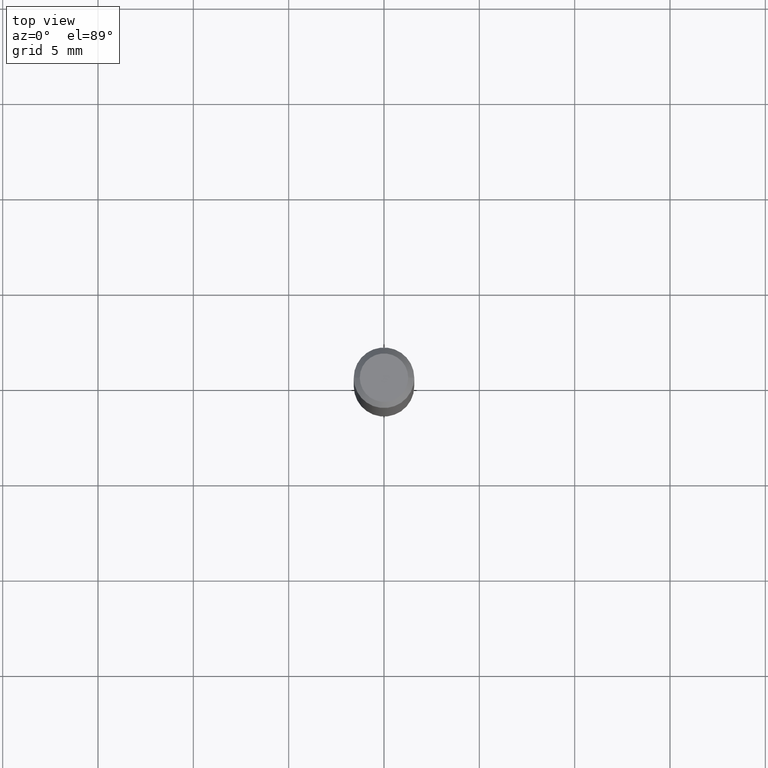
[diagram: clean part render]
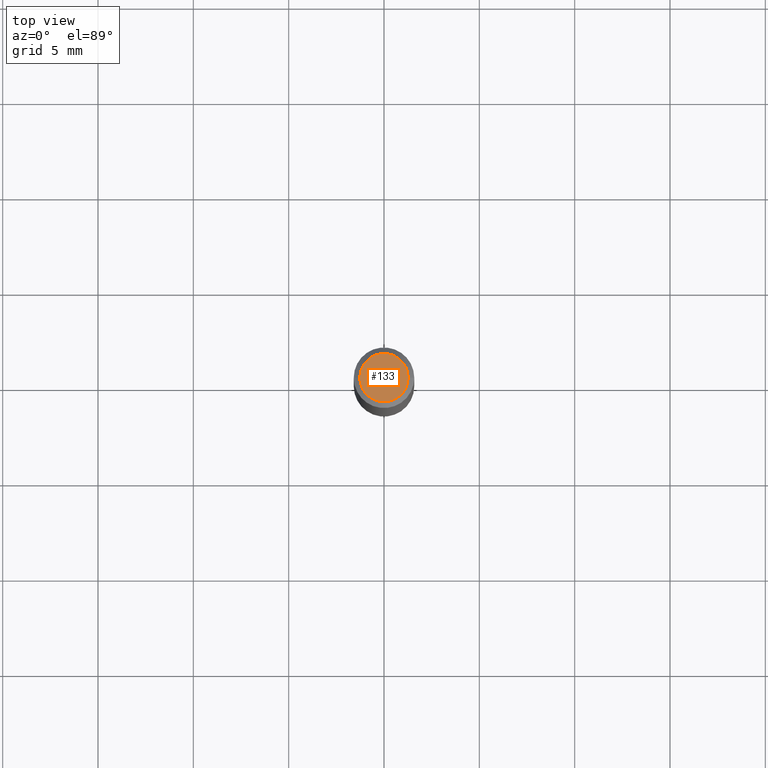
[diagram: same view with one face highlighted and labeled with its STEP entity id]
A machine part, top view. The second image highlights one B-rep face of the part: STEP entity #133.
In plain terms, the highlighted planar face has unit normal (0, -0, -1).
Its self-contained STEP definition (entity closure, byte-faithful):
#6 = EDGE_CURVE ( 'NONE', #120, #266, #114, .T. ) ;
#13 = CARTESIAN_POINT ( 'NONE',  ( 0.04999999999999999584, -4.077247707424184705E-16, -1.592040838888913461E-18 ) ) ;
#44 = CARTESIAN_POINT ( 'NONE',  ( 3.893286209682126177E-47, -5.558580879666067980E-33, -1.592040838891559689E-18 ) ) ;
#81 = AXIS2_PLACEMENT_3D ( 'NONE', #44, #382, #150 ) ;
#114 = CIRCLE ( 'NONE', #81, 0.04999999999999999584 ) ;
#120 = VERTEX_POINT ( 'NONE', #13 ) ;
#131 = AXIS2_PLACEMENT_3D ( 'NONE', #161, #318, #430 ) ;
#133 = ADVANCED_FACE ( 'NONE', ( #168 ), #199, .F. ) ;
#136 = CARTESIAN_POINT ( 'NONE',  ( 3.893286209682126177E-47, -5.558580879666067980E-33, -1.592040838891559689E-18 ) ) ;
#150 = DIRECTION ( 'NONE',  ( 1.000000000000000000, -6.982962677686265922E-15, 4.875957971899673662E-29 ) ) ;
#161 = CARTESIAN_POINT ( 'NONE',  ( 1.946643104841063088E-47, -2.779290439833033990E-33, -7.960204194457798443E-19 ) ) ;
#163 = AXIS2_PLACEMENT_3D ( 'NONE', #136, #222, #409 ) ;
#168 = FACE_OUTER_BOUND ( 'NONE', #174, .T. ) ;
#174 = EDGE_LOOP ( 'NONE', ( #235, #312 ) ) ;
#199 = PLANE ( 'NONE',  #131 ) ;
#222 = DIRECTION ( 'NONE',  ( -2.445468806185136597E-29, 3.491481338843145583E-15, 1.000000000000000000 ) ) ;
#235 = ORIENTED_EDGE ( 'NONE', *, *, #327, .T. ) ;
#266 = VERTEX_POINT ( 'NONE', #397 ) ;
#312 = ORIENTED_EDGE ( 'NONE', *, *, #6, .T. ) ;
#318 = DIRECTION ( 'NONE',  ( 2.438088387897960049E-29, -3.491481338843145188E-15, -1.000000000000000000 ) ) ;
#327 = EDGE_CURVE ( 'NONE', #266, #120, #421, .T. ) ;
#382 = DIRECTION ( 'NONE',  ( -2.445468806185136597E-29, 3.491481338843145583E-15, 1.000000000000000000 ) ) ;
#397 = CARTESIAN_POINT ( 'NONE',  ( -0.04999999999999999584, 3.709698922520826725E-16, -1.592040838894077649E-18 ) ) ;
#409 = DIRECTION ( 'NONE',  ( 1.000000000000000000, -6.982962677686265922E-15, 4.875957971899673662E-29 ) ) ;
#421 = CIRCLE ( 'NONE', #163, 0.04999999999999999584 ) ;
#430 = DIRECTION ( 'NONE',  ( -1.000000000000000000, 6.982962677686265922E-15, -4.876176775795935793E-29 ) ) ;